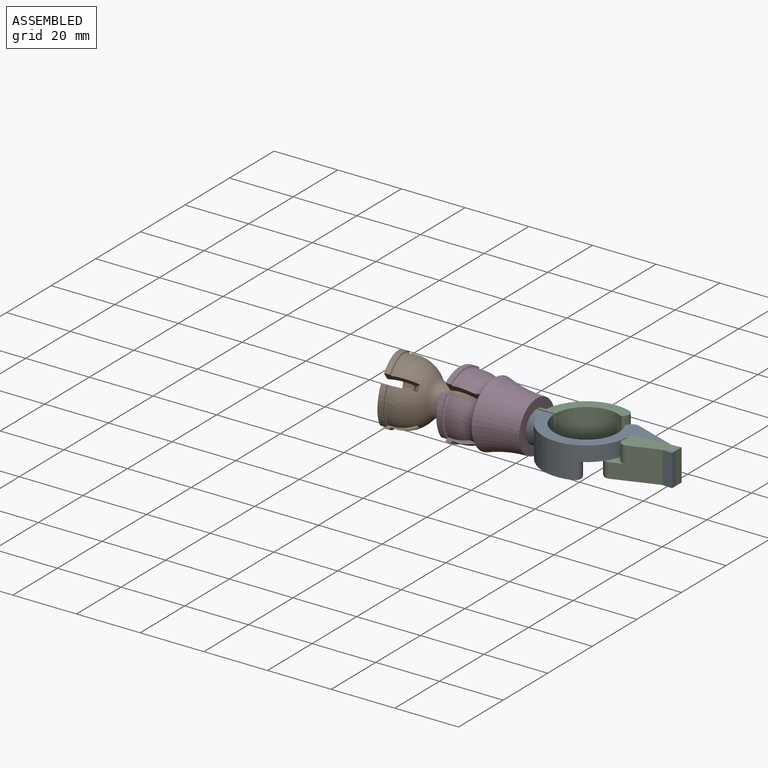
[diagram: assembled view]
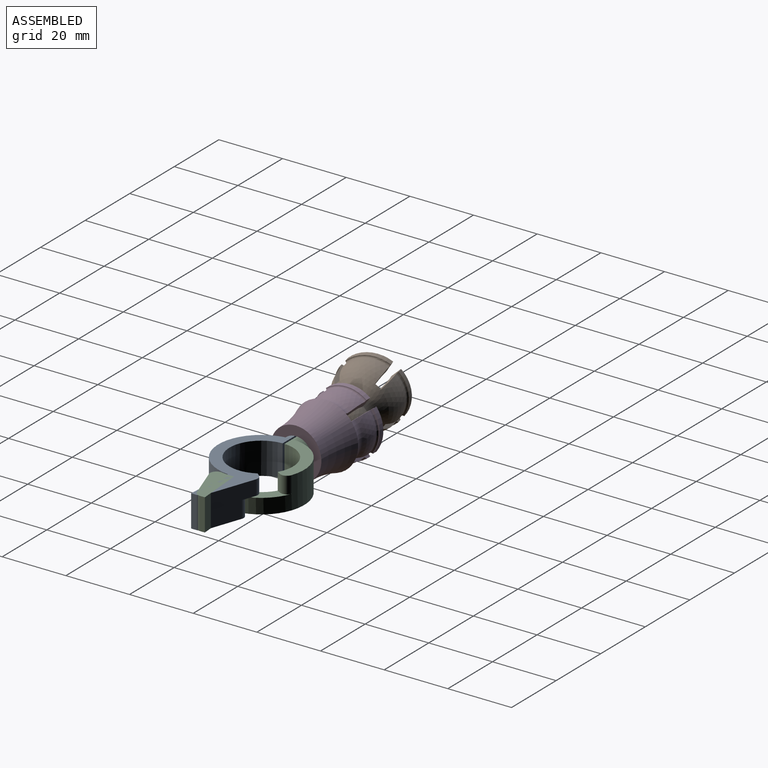
[diagram: assembled view, second angle]
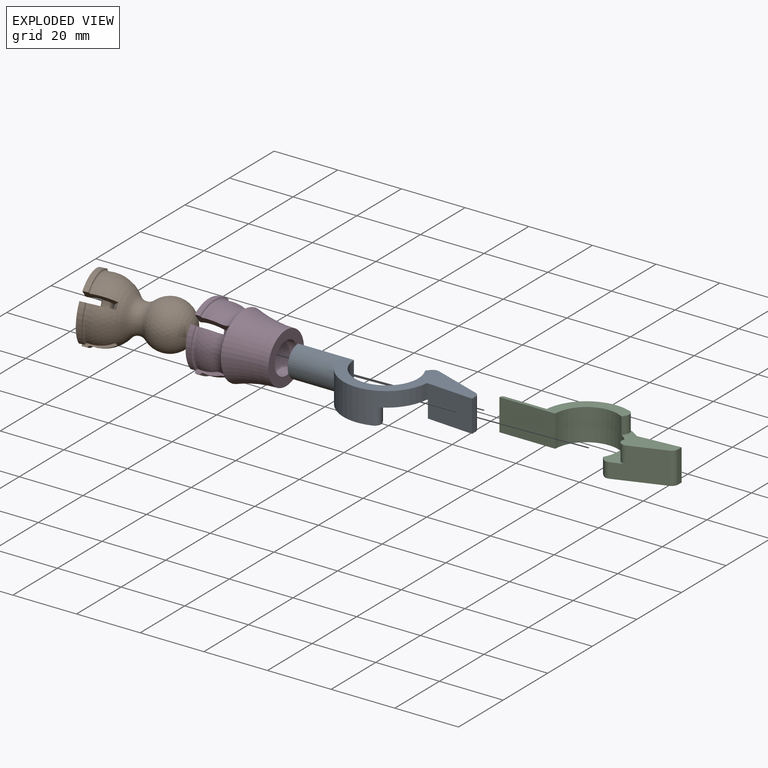
[diagram: exploded view]
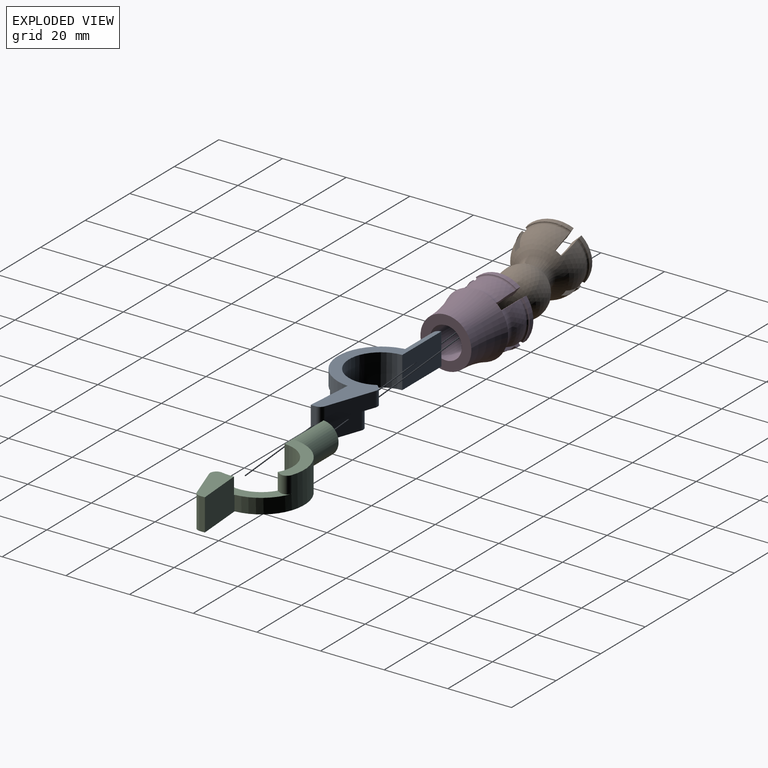
[diagram: exploded view, second angle]
ASSEMBLY  parts=4 mates=3
PART A: 19 faces, bbox 56x20.3x10 mm
  f0: cylinder r=13.5mm len=26.96mm, axis (0,0,1), area 291.9mm2, adj f2,f7,f8,f9,f11,f14,f15
  f1: plane 9.98x4.7mm, normal (-1,0,0), area 36.3mm2, adj f2,f14
  f2: plane 17.54x10mm, normal (0,-1,0), area 175.2mm2, adj f0,f1,f3,f8,f11,f14
  f3: cylinder r=10mm len=20mm, axis (0,0,1), area 280mm2, adj f2,f4,f8,f9,f10,f11
  f4: plane 4.7x1.15mm, normal (-0.75,-0.66,0), area 7.2mm2, adj f3,f8,f9,f18
  f5: plane 15.22x10mm, normal (0.33,-0.94,0), area 137.4mm2, adj f8,f9,f13,f16,f17,f18
  f6: plane 10x1.58mm, normal (1,0,0), area 15.8mm2, adj f7,f8,f13,f17
  f7: plane 14.96x10mm, normal (-0.08,1,0), area 148.4mm2, adj f0,f6,f8,f9,f12,f13
  f8: plane 41.92x20.27mm, normal (0,0,-1), area 229.1mm2, adj f0,f2,f3,f4,f5,f6,f7,f17
  f9: plane 19.45x11.51mm, normal (0,0,1), area 72.7mm2, adj f0,f3,f4,f5,f7,f10,f12,f15
  f10: plane 5.3x1.15mm, normal (0.87,-0.5,0), area 7mm2, adj f3,f9,f11,f15
  f11: plane 19.43x13.2mm, normal (0,0,1), area 84mm2, adj f0,f2,f3,f10,f15
  f12: cylinder r=13.8mm len=5.3mm, axis (0,0,-1), area 20.8mm2, adj f7,f9,f13,f16
  f13: plane 14.96x7.43mm, normal (0,0,1), area 72.4mm2, adj f5,f6,f7,f12,f16,f17
  f14: cylinder r=5mm len=15mm, axis (1,0,0), area 219.6mm2, adj f0,f1,f2
  f15: cylinder r=2mm len=5.3mm, axis (0,0,1), area 18.5mm2, adj f0,f9,f10,f11
  f16: cylinder r=2mm len=5.3mm, axis (0,0,-1), area 22.4mm2, adj f5,f9,f12,f13
  f17: cylinder r=2mm len=10mm, axis (0,0,1), area 24.7mm2, adj f5,f6,f8,f13
  f18: cylinder r=2mm len=4.7mm, axis (0,0,1), area 11.1mm2, adj f4,f5,f8,f9
PART B: 32 faces, bbox 23.7x23.7x29.4 mm
  f0: cone r=6.14mm half-angle=55deg, axis (0,0,1), area 4.7mm2, adj f5,f7,f22,f26
  f1: cone r=6.14mm half-angle=55deg, axis (0,0,1), area 4.7mm2, adj f5,f7,f17,f21
  f2: cone r=6.14mm half-angle=55deg, axis (0,0,1), area 4.7mm2, adj f5,f7,f12,f16
  f3: sphere r=7.5mm, area 595.5mm2, adj f4
  f4: torus R=7.89mm, axis (0,0,-1), area 175.2mm2, adj f3,f5
  f5: sphere r=10mm, area 518.2mm2, adj f0,f1,f2,f4,f6,f8,f11,f12
  f6: cone r=6.14mm half-angle=55deg, axis (0,0,1), area 4.7mm2, adj f5,f7,f11,f27
  f7: sphere r=7.5mm, area 450.2mm2, adj f0,f1,f2,f6,f11,f12,f16,f17
  f8: torus R=10.5mm, axis (0,0,1), area 13.6mm2, adj f5,f9,f11,f12
  f9: cylinder r=10.5mm len=12.78mm, axis (0,0,1), area 23.2mm2, adj f8,f10,f11,f12
  f10: plane 12.78x4.96mm, normal (0,0,-1), area 40.3mm2, adj f9,f11,f12,f31
  f11: plane 9.48x3.46mm, normal (0.61,0.79,0), area 24.6mm2, adj f5,f6,f7,f8,f9,f10,f31
  f12: plane 9.48x3.46mm, normal (0.61,-0.79,0), area 24.6mm2, adj f2,f5,f7,f8,f9,f10,f31
  f13: torus R=10.5mm, axis (0,0,1), area 13.6mm2, adj f5,f14,f16,f17
  f14: cylinder r=10.5mm len=12.78mm, axis (0,0,1), area 23.2mm2, adj f13,f15,f16,f17
  f15: plane 12.78x4.96mm, normal (0,0,-1), area 40.3mm2, adj f14,f16,f17,f28
  f16: plane 9.48x3.46mm, normal (-0.79,0.61,0), area 24.6mm2, adj f2,f5,f7,f13,f14,f15,f28
  f17: plane 9.48x3.46mm, normal (0.79,0.61,0), area 24.6mm2, adj f1,f5,f7,f13,f14,f15,f28
  f18: torus R=10.5mm, axis (0,0,1), area 13.6mm2, adj f5,f19,f21,f22
  f19: cylinder r=10.5mm len=12.78mm, axis (0,0,1), area 23.2mm2, adj f18,f20,f21,f22
  f20: plane 12.78x4.96mm, normal (0,0,-1), area 40.3mm2, adj f19,f21,f22,f29
  f21: plane 9.48x3.46mm, normal (-0.61,-0.79,0), area 24.6mm2, adj f1,f5,f7,f18,f19,f20,f29
  f22: plane 9.48x3.46mm, normal (-0.61,0.79,0), area 24.6mm2, adj f0,f5,f7,f18,f19,f20,f29
  f23: torus R=10.5mm, axis (0,0,1), area 13.6mm2, adj f5,f24,f26,f27
  f24: cylinder r=10.5mm len=12.78mm, axis (0,0,1), area 23.2mm2, adj f23,f25,f26,f27
  f25: plane 12.78x4.96mm, normal (0,0,-1), area 40.3mm2, adj f24,f26,f27,f30
  f26: plane 9.48x3.46mm, normal (0.79,-0.61,0), area 24.6mm2, adj f0,f5,f7,f23,f24,f25,f30
  f27: plane 9.48x3.46mm, normal (-0.79,-0.61,0), area 24.6mm2, adj f5,f6,f7,f23,f24,f25,f30
  f28: cone r=6.98mm half-angle=31.8deg, axis (0,0,-1), area 4.4mm2, adj f7,f15,f16,f17
  f29: cone r=6.98mm half-angle=31.8deg, axis (0,0,-1), area 4.4mm2, adj f7,f20,f21,f22
  f30: cone r=6.98mm half-angle=31.8deg, axis (0,0,-1), area 4.4mm2, adj f7,f25,f26,f27
  f31: cone r=6.98mm half-angle=31.8deg, axis (0,0,-1), area 4.4mm2, adj f7,f10,f11,f12
PART C: same geometry as A
PART D: 41 faces, bbox 42.9x42.9x29 mm
  f0: cone r=6.14mm half-angle=55deg, axis (0,0,1), area 10.7mm2, adj f6,f7,f25,f32
  f1: cone r=6.14mm half-angle=55deg, axis (0,0,1), area 10.7mm2, adj f6,f7,f19,f26
  f2: cone r=6.14mm half-angle=55deg, axis (0,0,1), area 10.7mm2, adj f6,f7,f13,f20
  f3: cone r=6.14mm half-angle=55deg, axis (0,0,1), area 10.7mm2, adj f6,f7,f14,f31
  f4: cylinder r=5mm len=12mm, axis (0,0,1), area 377mm2, adj f5,f8
  f5: plane 16x16mm, normal (0,0,1), area 122.5mm2, adj f4,f6
  f6: torus R=48.79mm, axis (0,0,1), area 746.5mm2, adj f0,f1,f2,f3,f5,f33,f34,f35
  f7: sphere r=7.5mm, area 450.2mm2, adj f0,f1,f2,f3,f13,f14,f19,f20
  f8: plane 10x10mm, normal (0,0,1), area 78.5mm2, adj f4
  f9: sphere r=10mm, area 66.3mm2, adj f10,f13,f14,f36
  f10: torus R=10.5mm, axis (0,0,1), area 13.6mm2, adj f9,f11,f13,f14
  f11: cylinder r=10.5mm len=12.78mm, axis (0,0,1), area 23.2mm2, adj f10,f12,f13,f14
  f12: plane 12.78x4.96mm, normal (0,0,-1), area 40.3mm2, adj f11,f13,f14,f39
  f13: plane 10.91x3.46mm, normal (0.61,0.79,0), area 25.9mm2, adj f2,f7,f9,f10,f11,f12,f36,f39
  f14: plane 10.91x3.46mm, normal (0.61,-0.79,0), area 25.9mm2, adj f3,f7,f9,f10,f11,f12,f36,f39
  f15: sphere r=10mm, area 66.3mm2, adj f16,f19,f20,f35
  f16: torus R=10.5mm, axis (0,0,1), area 13.6mm2, adj f15,f17,f19,f20
  f17: cylinder r=10.5mm len=12.78mm, axis (0,0,1), area 23.2mm2, adj f16,f18,f19,f20
  f18: plane 12.78x4.96mm, normal (0,0,-1), area 40.3mm2, adj f17,f19,f20,f38
  f19: plane 10.91x3.46mm, normal (0.79,-0.61,0), area 25.9mm2, adj f1,f7,f15,f16,f17,f18,f35,f38
  f20: plane 10.91x3.46mm, normal (-0.79,-0.61,0), area 25.9mm2, adj f2,f7,f15,f16,f17,f18,f35,f38
  f21: sphere r=10mm, area 66.3mm2, adj f22,f25,f26,f34
  f22: torus R=10.5mm, axis (0,0,1), area 13.6mm2, adj f21,f23,f25,f26
  f23: cylinder r=10.5mm len=12.78mm, axis (0,0,1), area 23.2mm2, adj f22,f24,f25,f26
  f24: plane 12.78x4.96mm, normal (0,0,-1), area 40.3mm2, adj f23,f25,f26,f37
  f25: plane 10.91x3.46mm, normal (-0.61,-0.79,0), area 25.9mm2, adj f0,f7,f21,f22,f23,f24,f34,f37
  f26: plane 10.91x3.46mm, normal (-0.61,0.79,0), area 25.9mm2, adj f1,f7,f21,f22,f23,f24,f34,f37
  f27: sphere r=10mm, area 66.3mm2, adj f28,f31,f32,f33
  f28: torus R=10.5mm, axis (0,0,1), area 13.6mm2, adj f27,f29,f31,f32
  f29: cylinder r=10.5mm len=12.78mm, axis (0,0,1), area 23.2mm2, adj f28,f30,f31,f32
  f30: plane 12.78x4.96mm, normal (0,0,-1), area 40.3mm2, adj f29,f31,f32,f40
  f31: plane 10.91x3.46mm, normal (-0.79,0.61,0), area 25.9mm2, adj f3,f7,f27,f28,f29,f30,f33,f40
  f32: plane 10.91x3.46mm, normal (0.79,0.61,0), area 25.9mm2, adj f0,f7,f27,f28,f29,f30,f33,f40
  f33: torus R=12.08mm, axis (0,0,-1), area 47.5mm2, adj f6,f27,f31,f32
  f34: torus R=12.08mm, axis (0,0,-1), area 47.5mm2, adj f6,f21,f25,f26
  f35: torus R=12.08mm, axis (0,0,-1), area 47.5mm2, adj f6,f15,f19,f20
  f36: torus R=12.08mm, axis (0,0,-1), area 47.5mm2, adj f6,f9,f13,f14
  f37: cone r=6.98mm half-angle=31.8deg, axis (0,0,-1), area 4.4mm2, adj f7,f24,f25,f26
  f38: cone r=6.98mm half-angle=31.8deg, axis (0,0,-1), area 4.4mm2, adj f7,f18,f19,f20
  f39: cone r=6.98mm half-angle=31.8deg, axis (0,0,-1), area 4.4mm2, adj f7,f12,f13,f14
  f40: cone r=6.98mm half-angle=31.8deg, axis (0,0,-1), area 4.4mm2, adj f7,f30,f31,f32
PLACE A rot(axis=(1,0,0),180deg) t=(1.72,0.59,5.07)mm fixed
PLACE B rot(axis=(-0.06,0.99,0.15),94.5deg) t=(-52.02,-3.31,6.08)mm
PLACE C t=(1.72,0.59,5.07)mm
PLACE D rot(axis=(-0.71,0,-0.71),180deg) t=(-34.32,0.59,5.07)mm
MATE fastened D.f4 <-> C.f14  axis (1,0,0) through (-25.82,0.59,5.07)mm
MATE fastened C.f14 <-> A.f14  axis (-1,0,0) through (-25.82,0.59,5.07)mm
MATE ball B.f0 <-> D.f23  axis (0.97,0.22,-0.06) through (-34.32,0.59,5.07)mm
